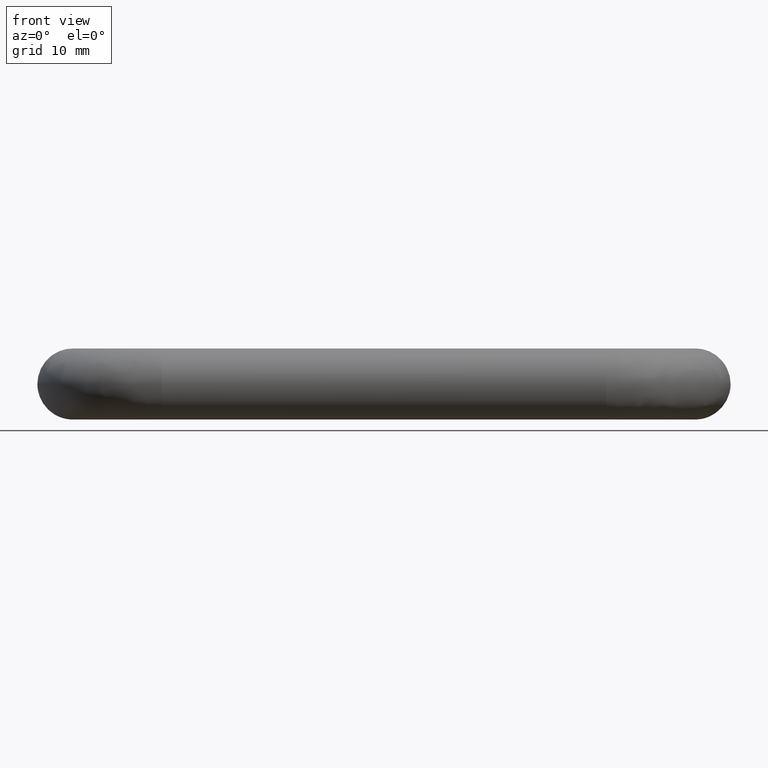
[diagram: clean part render]
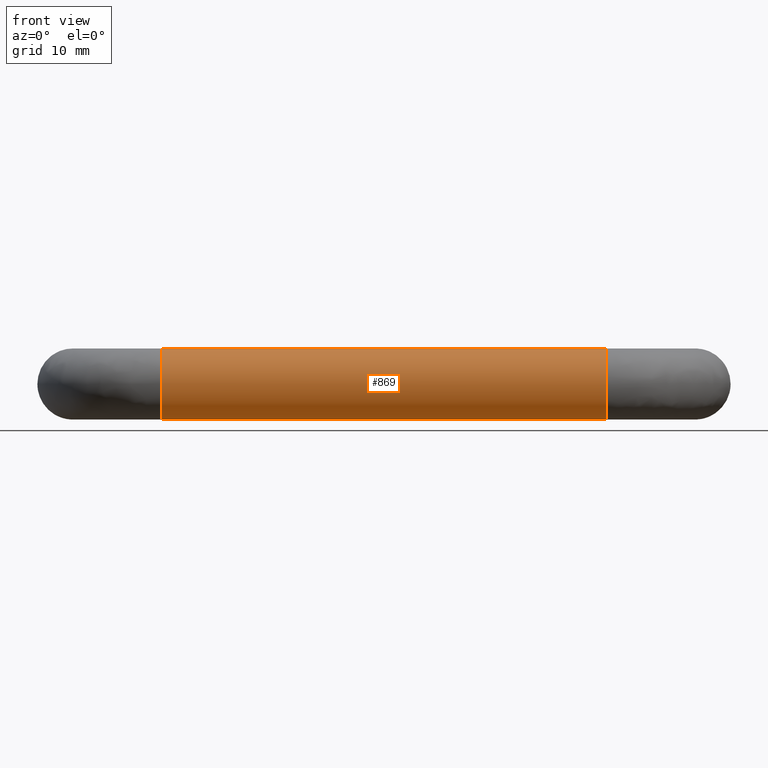
[diagram: same view with one face highlighted and labeled with its STEP entity id]
A machine part, front view. The second image highlights one B-rep face of the part: STEP entity #869.
In plain terms, the highlighted face is a freeform B-spline surface patch.
Its self-contained STEP definition (entity closure, byte-faithful):
#644=CARTESIAN_POINT('',(59.999993848015109,-18.382643313175549,-3.024804782780067));
#645=VERTEX_POINT('',#644);
#659=CARTESIAN_POINT('',(10.0,-18.382643202524559,-3.024804687034064));
#660=VERTEX_POINT('',#659);
#661=CARTESIAN_POINT('',(10.0,-18.382643202524559,-3.024804687034064));
#662=CARTESIAN_POINT('',(59.999993848015109,-18.382643313175549,-3.024804782780067));
#663=QUASI_UNIFORM_CURVE('',1,(#661,#662),.UNSPECIFIED.,.F.,.U.);
#664=EDGE_CURVE('',#660,#645,#663,.T.);
#681=CARTESIAN_POINT('',(9.999999999932687,-18.297640207706060,2.949110298504764));
#682=VERTEX_POINT('',#681);
#696=CARTESIAN_POINT('',(60.000000000000007,-18.297639657657740,2.949109794520274));
#697=VERTEX_POINT('',#696);
#698=CARTESIAN_POINT('',(9.999999999932687,-18.297640207706060,2.949110298504764));
#699=CARTESIAN_POINT('',(60.000000000000007,-18.297639657657740,2.949109794520274));
#700=QUASI_UNIFORM_CURVE('',1,(#698,#699),.UNSPECIFIED.,.F.,.U.);
#701=EDGE_CURVE('',#682,#697,#700,.T.);
#719=CARTESIAN_POINT('',(8.749999999681151,-18.297639169537359,2.949109347240495));
#720=CARTESIAN_POINT('',(8.749999999681151,-21.246748516777853,5.651470177703135));
#721=CARTESIAN_POINT('',(8.749999999681151,-23.949109347240491,2.702360830462640));
#722=CARTESIAN_POINT('',(8.749999999681151,-26.651470177703136,-0.246748516777855));
#723=CARTESIAN_POINT('',(8.749999999681151,-23.702360830462641,-2.949109347240495));
#724=CARTESIAN_POINT('',(8.749999999681151,-21.076203431913822,-5.355539239407285));
#725=CARTESIAN_POINT('',(8.749999999681151,-18.382641371989180,-3.024803103075854));
#726=CARTESIAN_POINT('',(61.281250000240277,-18.297639169537351,2.949109347240495));
#727=CARTESIAN_POINT('',(61.281250000240298,-21.246748516777853,5.651470177703135));
#728=CARTESIAN_POINT('',(61.281250000240277,-23.949109347240491,2.702360830462640));
#729=CARTESIAN_POINT('',(61.281250000240298,-26.651470177703136,-0.246748516777855));
#730=CARTESIAN_POINT('',(61.281250000240277,-23.702360830462631,-2.949109347240495));
#731=CARTESIAN_POINT('',(61.281250000240270,-21.076203431913807,-5.355539239407285));
#732=CARTESIAN_POINT('',(61.281250000240291,-18.382641371989170,-3.024803103075854));
#740=(BOUNDED_SURFACE()B_SPLINE_SURFACE(2,1,((#719,#726),(#720,#727),(#721,#728),(#722,#729),(#723,#730),(#724,#731),(#725,#732)),.UNSPECIFIED.,.F.,.F.,.U.)B_SPLINE_SURFACE_WITH_KNOTS((3,2,2,3),(2,2),(0.0,6.627416997969523,13.254833995939050,19.352057634071009),(0.0,52.531250000559147),.UNSPECIFIED.)GEOMETRIC_REPRESENTATION_ITEM()RATIONAL_B_SPLINE_SURFACE(((1.0,1.0),(0.707106781186548,0.707106781186548),(1.0,1.0),(0.707106781186548,0.707106781186548),(1.0,1.0),(0.730538238691624,0.730538238691624),(0.956886118190660,0.956886118190660)))REPRESENTATION_ITEM('')SURFACE());
#741=CARTESIAN_POINT('',(59.999989025169832,-20.899480271524620,-3.998736773556025));
#742=VERTEX_POINT('',#741);
#743=CARTESIAN_POINT('',(59.999993848015109,-18.382643313175549,-3.024804782780068));
#744=CARTESIAN_POINT('',(59.999991041598342,-19.466560936218986,-3.962716232402942));
#745=CARTESIAN_POINT('',(59.999989025169825,-20.899480271524624,-3.998736773556025));
#753=(BOUNDED_CURVE()B_SPLINE_CURVE(2,(#743,#744,#745),.UNSPECIFIED.,.F.,.U.)B_SPLINE_CURVE_WITH_KNOTS((3,3),(0.135882216908022,0.245579920357062),.UNSPECIFIED.)CURVE()GEOMETRIC_REPRESENTATION_ITEM()RATIONAL_B_SPLINE_CURVE((0.854663316661293,0.865851877015224,0.989826222297072))REPRESENTATION_ITEM(''));
#754=EDGE_CURVE('',#645,#742,#753,.T.);
#755=ORIENTED_EDGE('',*,*,#754,.T.);
#756=CARTESIAN_POINT('',(60.0,-25.0,0.0));
#757=VERTEX_POINT('',#756);
#758=CARTESIAN_POINT('',(59.999989025169825,-20.899480271524627,-3.998736773556026));
#759=CARTESIAN_POINT('',(59.999989092418183,-20.949732198310265,-4.000000000000251));
#760=CARTESIAN_POINT('',(59.999989161378252,-20.999999999999989,-4.000000000000249));
#761=CARTESIAN_POINT('',(59.999994648793326,-25.0,-4.000000000000123));
#762=CARTESIAN_POINT('',(60.0,-25.0,0.0));
#770=(BOUNDED_CURVE()B_SPLINE_CURVE(2,(#758,#759,#760,#761,#762),.UNSPECIFIED.,.F.,.U.)B_SPLINE_CURVE_WITH_KNOTS((3,2,3),(0.245579920357062,0.250000000000000,0.500000000000000),.UNSPECIFIED.)CURVE()GEOMETRIC_REPRESENTATION_ITEM()RATIONAL_B_SPLINE_CURVE((0.989826222297073,0.994821554583873,1.0,0.707106781186548,1.0))REPRESENTATION_ITEM(''));
#771=EDGE_CURVE('',#742,#757,#770,.T.);
#772=ORIENTED_EDGE('',*,*,#771,.T.);
#773=CARTESIAN_POINT('',(60.000000000226649,-21.100520383061760,3.998736757100811));
#774=VERTEX_POINT('',#773);
#775=CARTESIAN_POINT('',(60.0,-25.0,0.0));
#776=CARTESIAN_POINT('',(59.999999999999993,-24.999999999999996,3.900711502208163));
#777=CARTESIAN_POINT('',(60.000000000226642,-21.100520383061767,3.998736757100811));
#785=(BOUNDED_CURVE()B_SPLINE_CURVE(2,(#775,#776,#777),.UNSPECIFIED.,.F.,.U.)B_SPLINE_CURVE_WITH_KNOTS((3,3),(0.500000000000000,0.745579891657051),.UNSPECIFIED.)CURVE()GEOMETRIC_REPRESENTATION_ITEM()RATIONAL_B_SPLINE_CURVE((1.0,0.712285260226830,0.989826157426713))REPRESENTATION_ITEM(''));
#786=EDGE_CURVE('',#757,#774,#785,.T.);
#787=ORIENTED_EDGE('',*,*,#786,.T.);
#788=CARTESIAN_POINT('',(60.000000000226649,-21.100520383061767,3.998736757100811));
#789=CARTESIAN_POINT('',(60.0,-21.050268129782545,4.000000000000001));
#790=CARTESIAN_POINT('',(60.0,-21.0,4.0));
#791=CARTESIAN_POINT('',(60.000000000000007,-19.444485834766745,4.0));
#792=CARTESIAN_POINT('',(60.000000000000007,-18.297639657657740,2.949109794520274));
#800=(BOUNDED_CURVE()B_SPLINE_CURVE(2,(#788,#789,#790,#791,#792),.UNSPECIFIED.,.F.,.U.)B_SPLINE_CURVE_WITH_KNOTS((3,2,3),(0.745579891657050,0.750000000000000,0.868415159111876),.UNSPECIFIED.)CURVE()GEOMETRIC_REPRESENTATION_ITEM()RATIONAL_B_SPLINE_CURVE((0.989826157426711,0.994821520959716,1.0,0.861268011565662,0.853959787006197))REPRESENTATION_ITEM(''));
#801=EDGE_CURVE('',#774,#697,#800,.T.);
#802=ORIENTED_EDGE('',*,*,#801,.T.);
#803=ORIENTED_EDGE('',*,*,#701,.F.);
#804=CARTESIAN_POINT('',(9.999999999795115,-20.949735840187731,3.999684176811759));
#805=VERTEX_POINT('',#804);
#806=CARTESIAN_POINT('',(9.999999999795115,-20.949735840187728,3.999684176811759));
#807=CARTESIAN_POINT('',(9.999999999874300,-19.423205594652522,3.980500221965913));
#808=CARTESIAN_POINT('',(9.999999999932687,-18.297640207706056,2.949110298504764));
#816=(BOUNDED_CURVE()B_SPLINE_CURVE(2,(#806,#807,#808),.UNSPECIFIED.,.F.,.U.)B_SPLINE_CURVE_WITH_KNOTS((3,3),(0.752215704102795,0.868415155945529),.UNSPECIFIED.)CURVE()GEOMETRIC_REPRESENTATION_ITEM()RATIONAL_B_SPLINE_CURVE((0.994854295587569,0.861131268670793,0.853959787397031))REPRESENTATION_ITEM(''));
#817=EDGE_CURVE('',#805,#682,#816,.T.);
#818=ORIENTED_EDGE('',*,*,#817,.F.);
#819=CARTESIAN_POINT('',(10.0,-25.0,0.0));
#820=VERTEX_POINT('',#819);
#821=CARTESIAN_POINT('',(10.0,-25.0,0.0));
#822=CARTESIAN_POINT('',(10.000000000000002,-25.0,4.000000000000000));
#823=CARTESIAN_POINT('',(10.0,-21.0,4.0));
#824=CARTESIAN_POINT('',(10.0,-20.974866927753531,4.0));
#825=CARTESIAN_POINT('',(9.999999999795115,-20.949735840187731,3.999684176811760));
#833=(BOUNDED_CURVE()B_SPLINE_CURVE(2,(#821,#822,#823,#824,#825),.UNSPECIFIED.,.F.,.U.)B_SPLINE_CURVE_WITH_KNOTS((3,2,3),(0.500000000000000,0.750000000000000,0.752215704102796),.UNSPECIFIED.)CURVE()GEOMETRIC_REPRESENTATION_ITEM()RATIONAL_B_SPLINE_CURVE((1.0,0.707106781186548,1.0,0.997404141173575,0.994854295587567))REPRESENTATION_ITEM(''));
#834=EDGE_CURVE('',#820,#805,#833,.T.);
#835=ORIENTED_EDGE('',*,*,#834,.F.);
#836=CARTESIAN_POINT('',(9.999999999694458,-21.278933007478312,-3.990262695279485));
#837=VERTEX_POINT('',#836);
#838=CARTESIAN_POINT('',(9.999999999694458,-21.278933007478305,-3.990262695279485));
#839=CARTESIAN_POINT('',(10.000000000000002,-24.999999999999993,-3.730147386861420));
#840=CARTESIAN_POINT('',(10.0,-25.0,0.0));
#848=(BOUNDED_CURVE()B_SPLINE_CURVE(2,(#838,#839,#840),.UNSPECIFIED.,.F.,.U.)B_SPLINE_CURVE_WITH_KNOTS((3,3),(0.262166313566285,0.500000000000000),.UNSPECIFIED.)CURVE()GEOMETRIC_REPRESENTATION_ITEM()RATIONAL_B_SPLINE_CURVE((0.972879876172557,0.721360504152639,1.0))REPRESENTATION_ITEM(''));
#849=EDGE_CURVE('',#837,#820,#848,.T.);
#850=ORIENTED_EDGE('',*,*,#849,.F.);
#851=CARTESIAN_POINT('',(9.999999999999998,-18.382643202524559,-3.024804687034064));
#852=CARTESIAN_POINT('',(10.000000000000002,-19.509648644149969,-4.000000000000001));
#853=CARTESIAN_POINT('',(10.0,-21.0,-4.0));
#854=CARTESIAN_POINT('',(9.999999999999998,-21.139636464679697,-4.000000000000000));
#855=CARTESIAN_POINT('',(9.999999999694458,-21.278933007478305,-3.990262695279485));
#863=(BOUNDED_CURVE()B_SPLINE_CURVE(2,(#851,#852,#853,#854,#855),.UNSPECIFIED.,.F.,.U.)B_SPLINE_CURVE_WITH_KNOTS((3,2,3),(0.135882211381173,0.250000000000000,0.262166313566285),.UNSPECIFIED.)CURVE()GEOMETRIC_REPRESENTATION_ITEM()RATIONAL_B_SPLINE_CURVE((0.854663315533877,0.866302694270234,1.0,0.985746277033909,0.972879876172557))REPRESENTATION_ITEM(''));
#864=EDGE_CURVE('',#660,#837,#863,.T.);
#865=ORIENTED_EDGE('',*,*,#864,.F.);
#866=ORIENTED_EDGE('',*,*,#664,.T.);
#867=EDGE_LOOP('',(#755,#772,#787,#802,#803,#818,#835,#850,#865,#866));
#868=FACE_OUTER_BOUND('',#867,.T.);
#869=ADVANCED_FACE('',(#868),#740,.T.);